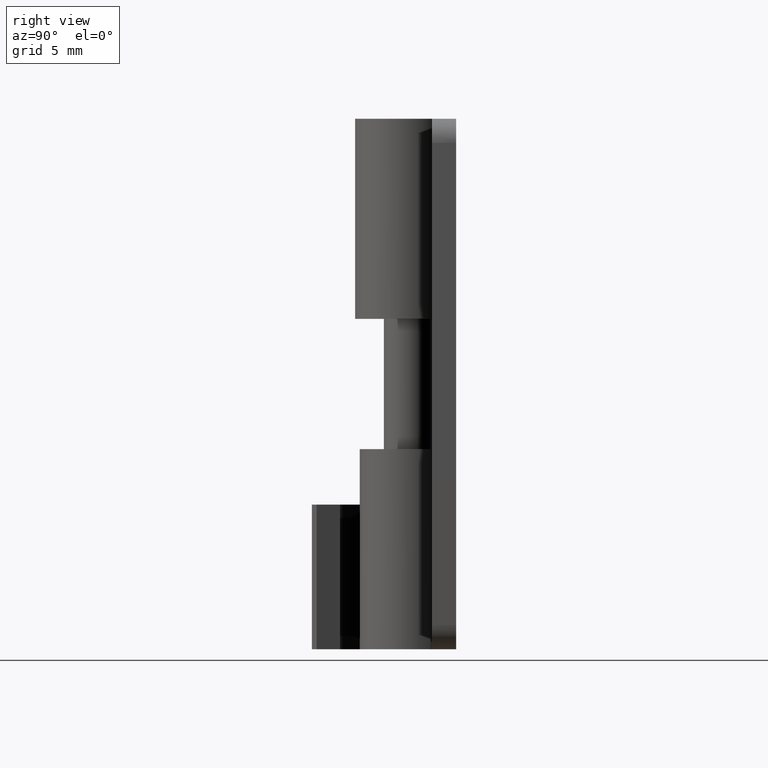
[diagram: clean part render]
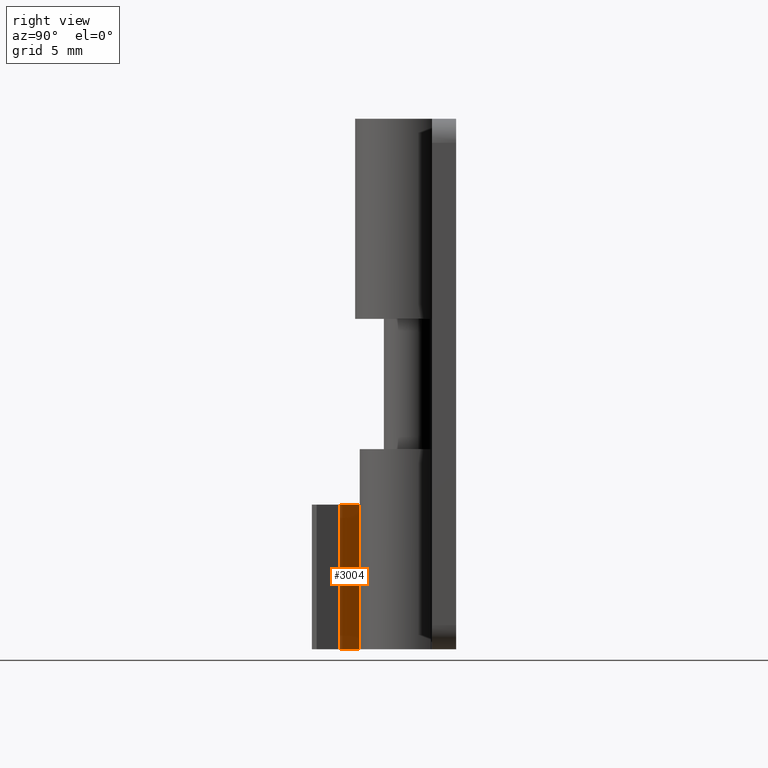
[diagram: same view with one face highlighted and labeled with its STEP entity id]
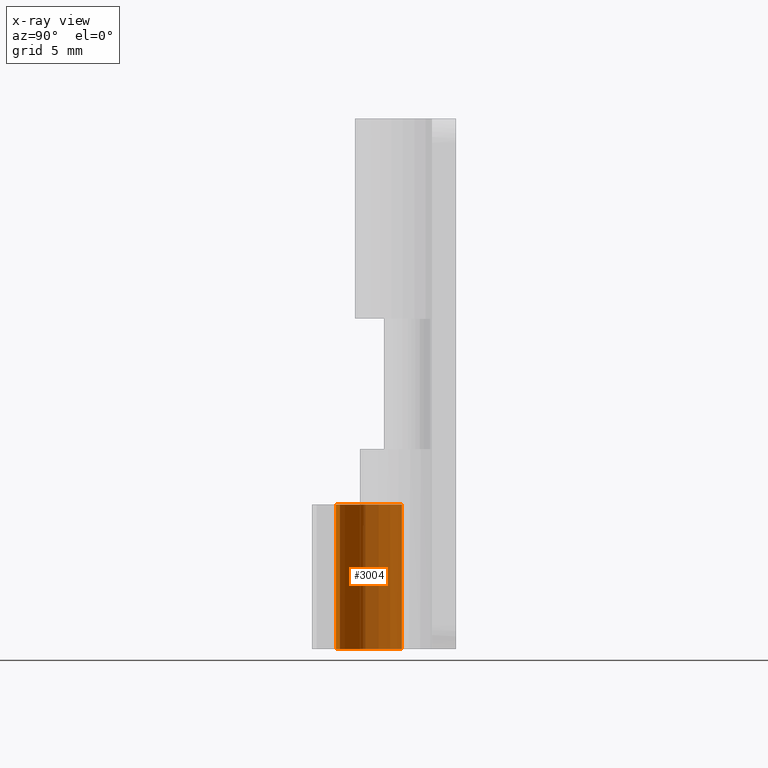
[diagram: x-ray of the same camera — body ghosted, the highlighted face saturated]
A machine part, right view. The second image highlights one B-rep face of the part: STEP entity #3004.
The next image is the same camera in x-ray: the body ghosted, the highlighted face saturated — about 59% of this face is hidden behind the body in this view.
In plain terms, the highlighted face is a freeform B-spline surface patch.
Its self-contained STEP definition (entity closure, byte-faithful):
#2884=CARTESIAN_POINT('',(-2.999999999995455,-0.249991999999963,6.0));
#2885=VERTEX_POINT('',#2884);
#2926=CARTESIAN_POINT('',(0.737124892351972,-2.816718406711060,6.0));
#2927=VERTEX_POINT('',#2926);
#2933=CARTESIAN_POINT('',(0.737124892351972,-2.816718406711060,6.0));
#2934=CARTESIAN_POINT('',(0.568737999194623,-2.881505900568880,6.000000000000008));
#2935=CARTESIAN_POINT('',(0.286379879697394,-2.959220023407441,5.999999999999985));
#2936=CARTESIAN_POINT('',(-0.155871363791802,-3.007963852110103,6.000000000000044));
#2937=CARTESIAN_POINT('',(-0.538634076503958,-2.994922037849506,5.999999999999930));
#2938=CARTESIAN_POINT('',(-0.942150167510576,-2.920785266369265,6.000000000000109));
#2939=CARTESIAN_POINT('',(-1.278858507047943,-2.808557740667493,5.999999999999897));
#2940=CARTESIAN_POINT('',(-1.635445130115909,-2.636121780634125,6.000000000000021));
#2941=CARTESIAN_POINT('',(-1.971045500057511,-2.411202166115431,6.000000000000064));
#2942=CARTESIAN_POINT('',(-2.269575519842024,-2.129138298843093,6.000000000000002));
#2943=CARTESIAN_POINT('',(-2.526645686638406,-1.809635526125592,5.999999999999978));
#2944=CARTESIAN_POINT('',(-2.721543060640536,-1.479808589300613,6.000000000000056));
#2945=CARTESIAN_POINT('',(-2.861605046171828,-1.131407292978782,5.999999999999844));
#2946=CARTESIAN_POINT('',(-2.968981261475070,-0.735725064138252,6.000000000000703));
#2947=CARTESIAN_POINT('',(-3.000029390708645,-0.444291863067898,5.999999999999050));
#2948=CARTESIAN_POINT('',(-2.999999999995455,-0.249991999999963,6.0));
#2949=B_SPLINE_CURVE_WITH_KNOTS('',3,(#2933,#2934,#2935,#2936,#2937,#2938,#2939,#2940,#2941,#2942,#2943,#2944,#2945,#2946,#2947,#2948),.UNSPECIFIED.,.F.,.U.,(4,1,1,1,1,1,1,1,1,1,1,1,1,4),(0.000000023449052,0.541255903779117,0.874343782793633,1.332339805138068,1.686243799633229,2.102605553328134,2.394057121432797,2.872847597310118,3.310029382889430,3.622295424657312,4.101108423187085,4.455014399660347,4.746466104532882,5.329358265360852),.UNSPECIFIED.);
#2950=EDGE_CURVE('',#2927,#2885,#2949,.T.);
#2955=CARTESIAN_POINT('',(-2.997457441196667,-0.131765062341607,6.150000000000001));
#2956=CARTESIAN_POINT('',(-2.997457441196667,-0.131765062341607,-0.153750000000001));
#2957=CARTESIAN_POINT('',(-3.194220107802603,-4.704302110364042,6.150000000000001));
#2958=CARTESIAN_POINT('',(-3.194220107802603,-4.704302110364042,-0.153750000000001));
#2959=CARTESIAN_POINT('',(0.935464948596477,-2.731357119376782,6.150000000000001));
#2960=CARTESIAN_POINT('',(0.935464948596477,-2.731357119376782,-0.153750000000001));
#2968=(BOUNDED_SURFACE()B_SPLINE_SURFACE(1,2,((#2955,#2957,#2959),(#2956,#2958,#2960)),.UNSPECIFIED.,.F.,.F.,.U.)B_SPLINE_SURFACE_WITH_KNOTS((2,2),(3,3),(0.0,6.303750000000002),(0.0,6.223500560065469),.UNSPECIFIED.)GEOMETRIC_REPRESENTATION_ITEM()RATIONAL_B_SPLINE_SURFACE(((1.0,0.515038074910054,1.0),(1.0,0.515038074910054,1.0)))REPRESENTATION_ITEM('')SURFACE());
#2969=CARTESIAN_POINT('',(0.737124892351972,-2.816718406711060,0.0));
#2970=VERTEX_POINT('',#2969);
#2971=CARTESIAN_POINT('',(-2.999999999995455,-0.249991999999963,0.0));
#2972=VERTEX_POINT('',#2971);
#2973=CARTESIAN_POINT('',(0.737124892351972,-2.816718406711060,0.0));
#2974=CARTESIAN_POINT('',(0.568738001147558,-2.881506763011471,0.0));
#2975=CARTESIAN_POINT('',(0.286379871148127,-2.959217938676867,0.0));
#2976=CARTESIAN_POINT('',(-0.142050896790008,-3.006439879275765,0.0));
#2977=CARTESIAN_POINT('',(-0.489888351562439,-2.997218817253093,0.0));
#2978=CARTESIAN_POINT('',(-0.846896286338277,-2.941362668559832,0.0));
#2979=CARTESIAN_POINT('',(-1.194859188721144,-2.842698414465602,0.0));
#2980=CARTESIAN_POINT('',(-1.588804500278822,-2.666716473476904,0.0));
#2981=CARTESIAN_POINT('',(-1.965983237261950,-2.415982910400662,0.0));
#2982=CARTESIAN_POINT('',(-2.315125867124229,-2.086119016829100,0.0));
#2983=CARTESIAN_POINT('',(-2.595224440347173,-1.712624569764764,0.0));
#2984=CARTESIAN_POINT('',(-2.812542906604078,-1.284106602937323,0.0));
#2985=CARTESIAN_POINT('',(-2.962335971964004,-0.798178427772090,0.0));
#2986=CARTESIAN_POINT('',(-3.000027663598667,-0.444291440050573,0.0));
#2987=CARTESIAN_POINT('',(-2.999999999995455,-0.249991999999963,0.0));
#2988=B_SPLINE_CURVE_WITH_KNOTS('',3,(#2973,#2974,#2975,#2976,#2977,#2978,#2979,#2980,#2981,#2982,#2983,#2984,#2985,#2986,#2987),.UNSPECIFIED.,.F.,.U.,(4,1,1,1,1,1,1,1,1,1,1,1,4),(0.000000023449052,0.541255903779117,0.874343782793633,1.290704127138787,1.582155133066281,1.956875452631327,2.373234905565244,2.872847597310118,3.310029382889430,3.809658481002241,4.267651175163766,4.746466104532882,5.329358265360852),.UNSPECIFIED.);
#2989=EDGE_CURVE('',#2970,#2972,#2988,.T.);
#2990=ORIENTED_EDGE('',*,*,#2989,.T.);
#2991=CARTESIAN_POINT('',(-2.999999999995455,-0.249991999999963,6.0));
#2992=CARTESIAN_POINT('',(-2.999999999995455,-0.249991999999963,0.0));
#2993=QUASI_UNIFORM_CURVE('',1,(#2991,#2992),.UNSPECIFIED.,.F.,.U.);
#2994=EDGE_CURVE('',#2885,#2972,#2993,.T.);
#2995=ORIENTED_EDGE('',*,*,#2994,.F.);
#2996=ORIENTED_EDGE('',*,*,#2950,.F.);
#2997=CARTESIAN_POINT('',(0.737124892351972,-2.816718406711060,6.0));
#2998=CARTESIAN_POINT('',(0.737124892351972,-2.816718406711060,0.0));
#2999=QUASI_UNIFORM_CURVE('',1,(#2997,#2998),.UNSPECIFIED.,.F.,.U.);
#3000=EDGE_CURVE('',#2927,#2970,#2999,.T.);
#3001=ORIENTED_EDGE('',*,*,#3000,.T.);
#3002=EDGE_LOOP('',(#2990,#2995,#2996,#3001));
#3003=FACE_OUTER_BOUND('',#3002,.T.);
#3004=ADVANCED_FACE('',(#3003),#2968,.F.);